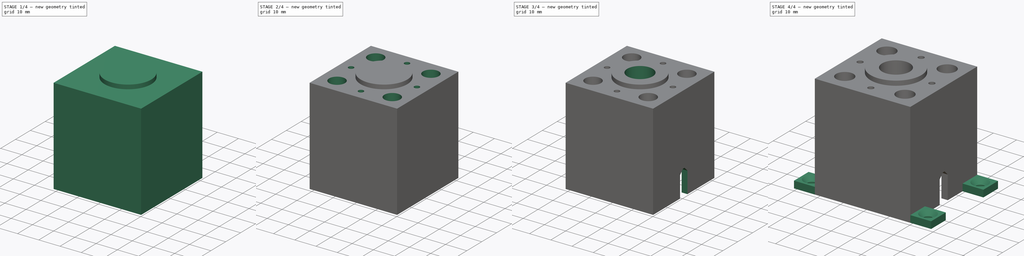
[diagram: build sequence overview — one tinted view per stage of 4, left to right]
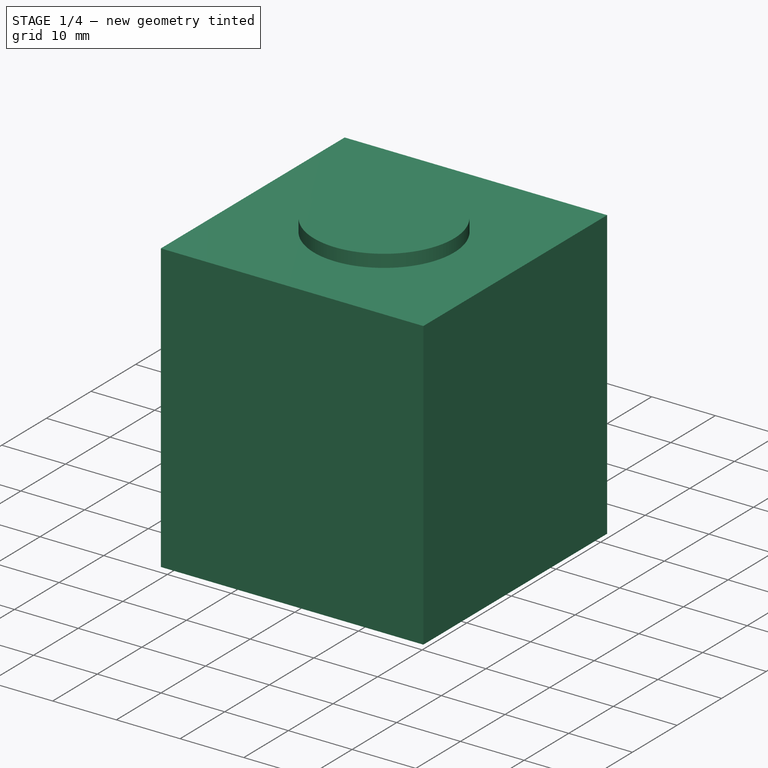
[diagram: stage 1 of 4 — iso view after this stage's code; geometry added in this stage tinted green]
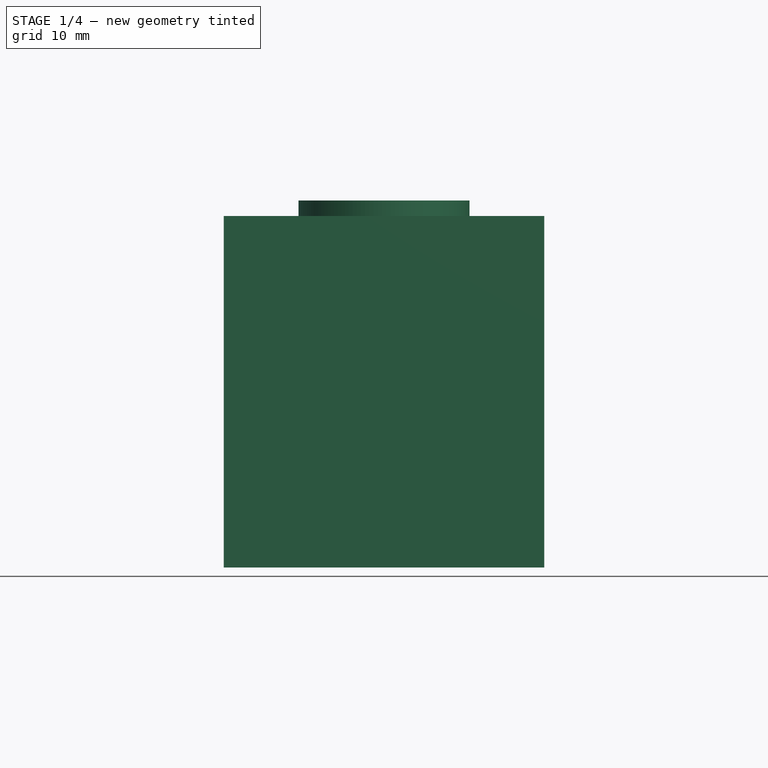
[diagram: stage 1 of 4 — front view after this stage's code; geometry added in this stage tinted green]
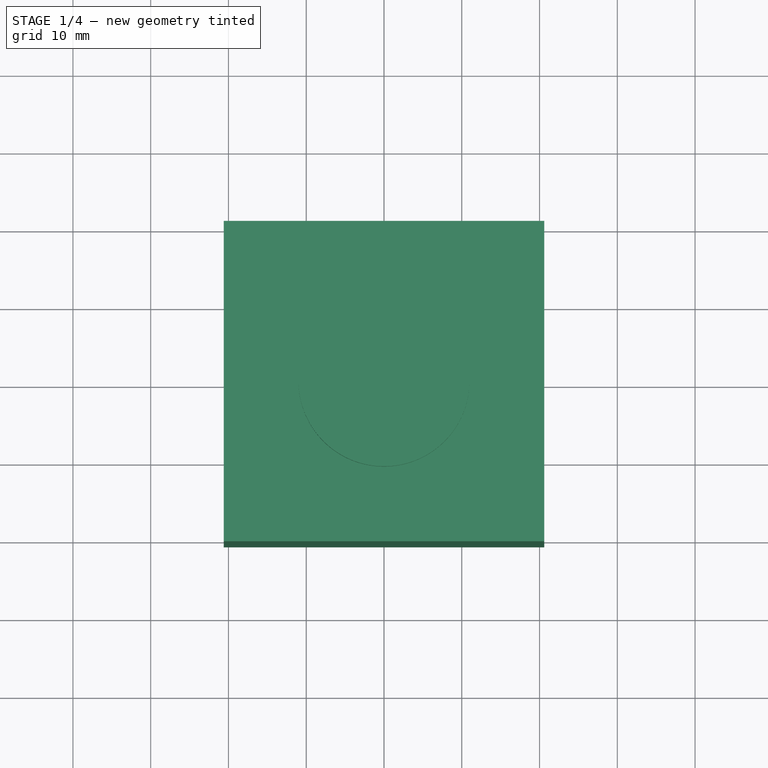
[diagram: stage 1 of 4 — top view after this stage's code; geometry added in this stage tinted green]
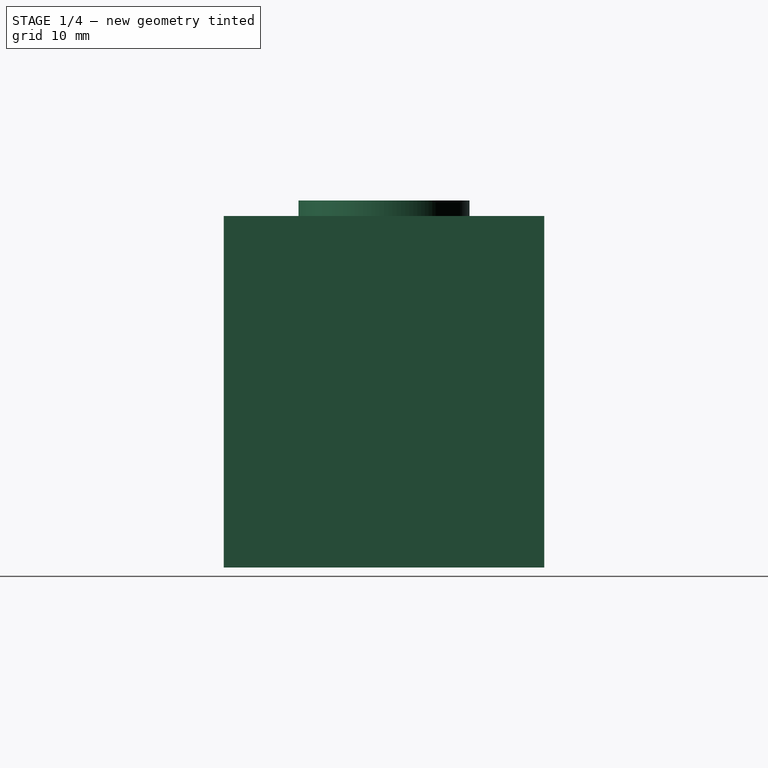
[diagram: stage 1 of 4 — right view after this stage's code; geometry added in this stage tinted green]
FCSTD DOCUMENT  (FreeCAD 0.18R16093 +53 (Git))
Label: ExtruderMount
License: All rights reserved
LicenseURL: http://en.wikipedia.org/wiki/All_rights_reserved
objects: Sketcher::SketchObject×10, PartDesign::Pocket×7, PartDesign::Pad×3, App::MeasureDistance×3, PartDesign::Chamfer×2, Spreadsheet::Sheet×1, PartDesign::Plane×1, PartDesign::Body×1
note: 34 computed .brp shape members not serialized (recipe doc carries the construction recipe); baked Part::Feature solids carry a one-line shape summary decoded from their .brp

FEATURE [Spreadsheet::Sheet] Spreadsheet
  cells = A1=MtrHolePitch; B1(MtrHolePitch)=26; A2=MtrHoleDiam; B2(MtrHoleDiam)=3; A3=MtrBodyLen; B3(MtrBodyLen)=36.2; A4=MtrBodyWid; B4(MtrBodyWid)=35.2; A5=MtrBossDiam; B5(MtrBodyDiam)=22; A6=MtrBossThk; B6(MtrBossThk)=2; A7=MtrShaftDiam; B7(MtrShaftDiam)=5; A9=StdThk; B9(StdThk)=3; A11=ExtrHolePitch; B11(ExtrHolePitch)=31; A12=ExtrHoleDiam; B12(ExtrHoleDiam)=2.5; A13=ExtrBossDiam; B13(ExtrBossDiam)=22; A14=ExtrBossThk; B14(ExtrBossThk)=2; A15=ExtrGearOff; B15(ExtrGearOff)=9; A16=GearDiam; B16(GearDiam)=12
FEATURE [Sketcher::SketchObject] Sketch
  MapMode = 5
  Support = -> [XY_Plane]
  expr: Constraints[6] = Spreadsheet.MtrBodyWid + Spreadsheet.StdThk * 2
  sketch-geometry (4):
    g0: LineSegment StartX=-20.6 StartY=20.6 StartZ=0 EndX=20.6 EndY=20.6 EndZ=0
    g1: LineSegment StartX=20.6 StartY=20.6 StartZ=0 EndX=20.6 EndY=-20.6 EndZ=0
    g2: LineSegment StartX=20.6 StartY=-20.6 StartZ=0 EndX=-20.6 EndY=-20.6 EndZ=0
    g3: LineSegment StartX=-20.6 StartY=-20.6 StartZ=0 EndX=-20.6 EndY=20.6 EndZ=0
  constraints (10):
    c: Coincident(g0,g1)
    c: Coincident(g1,g2)
    c: Coincident(g2,g3)
    c: Coincident(g3,g0)
    c: Horizontal(g0)
    c: Vertical(g1)
    c: DistanceX(g2,g1) = 41.2
    c: Symmetric(g2,g1,g-2)
    c: Symmetric(g0,g2,g-1)
    c: Equal(g2,g3)
FEATURE [PartDesign::Pad] Pad
  Length = 45.2
  Length2 = 100
  Profile = -> Sketch
  Type = 0
  expr: Length = Spreadsheet.MtrBodyLen + Spreadsheet.ExtrGearOff
FEATURE [Sketcher::SketchObject] Sketch001
  MapMode = 5
  Support = -> [XY_Plane]
  expr: Constraints[1] = Spreadsheet.ExtrBossDiam
  sketch-geometry (1):
    g0: Circle CenterX=0 CenterY=0 CenterZ=0 NormalX=0 NormalY=0 NormalZ=1 AngleXU=0 Radius=11
  constraints (2):
    c: Coincident(g0,g-1)
    c: Diameter(g0) = 22
FEATURE [PartDesign::Pad] Pad001
  BaseFeature = -> Pad
  Length = 47.2
  Length2 = 100
  Profile = -> Sketch001
  Type = 0
  expr: Length = Spreadsheet.MtrBodyLen + Spreadsheet.ExtrGearOff + Spreadsheet.ExtrBossThk
FEATURE [Sketcher::SketchObject] Sketch002
  MapMode = 5
  Support = -> [XY_Plane]
  expr: Constraints[0] = Spreadsheet.ExtrBossDiam + 0.2
  sketch-geometry (1):
    g0: Circle CenterX=0 CenterY=0 CenterZ=0 NormalX=0 NormalY=0 NormalZ=1 AngleXU=0 Radius=11.1
  constraints (2):
    c: Diameter(g0) = 22.2
    c: Coincident(g0,g-1)
FEATURE [PartDesign::Pocket] Pocket
  BaseFeature = -> Pad001
  Length = 38.7
  Length2 = 100
  Profile = -> Sketch002
  Reversed = true
  Type = 0
  expr: Length = Spreadsheet.MtrBodyLen + Spreadsheet.MtrBossThk + 0.5
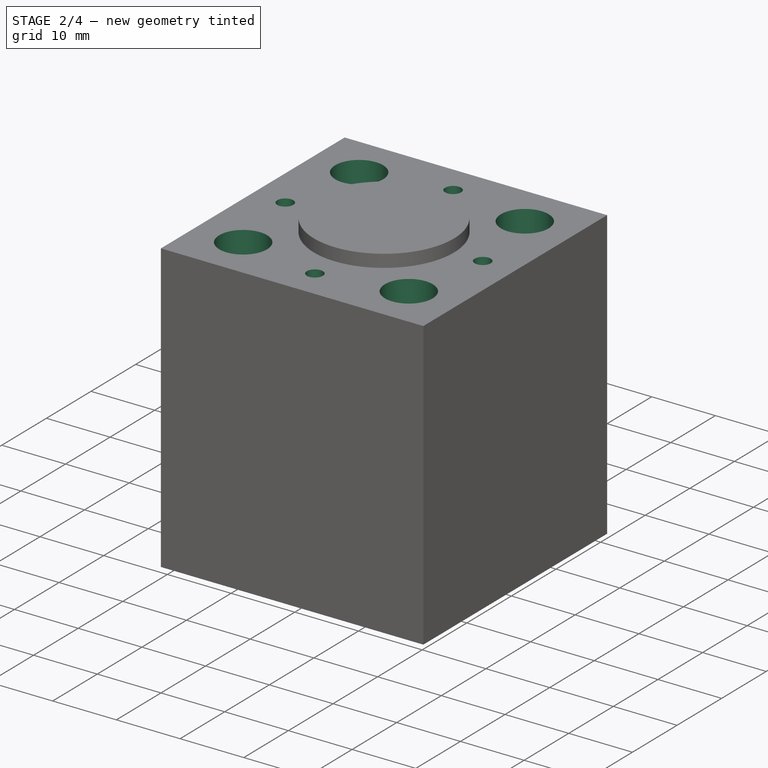
[diagram: stage 2 of 4 — iso view after this stage's code; geometry added in this stage tinted green]
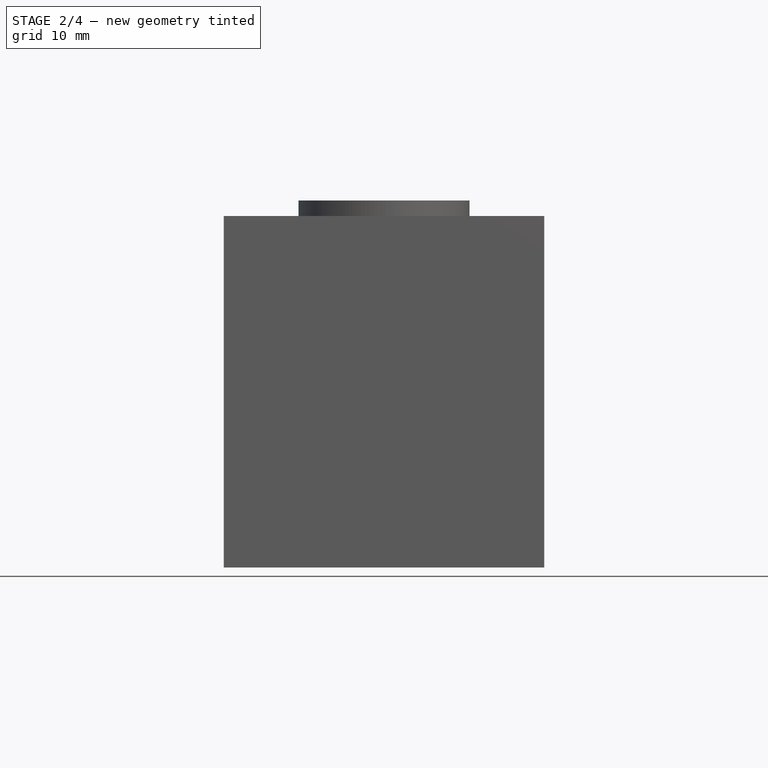
[diagram: stage 2 of 4 — front view after this stage's code; geometry added in this stage tinted green]
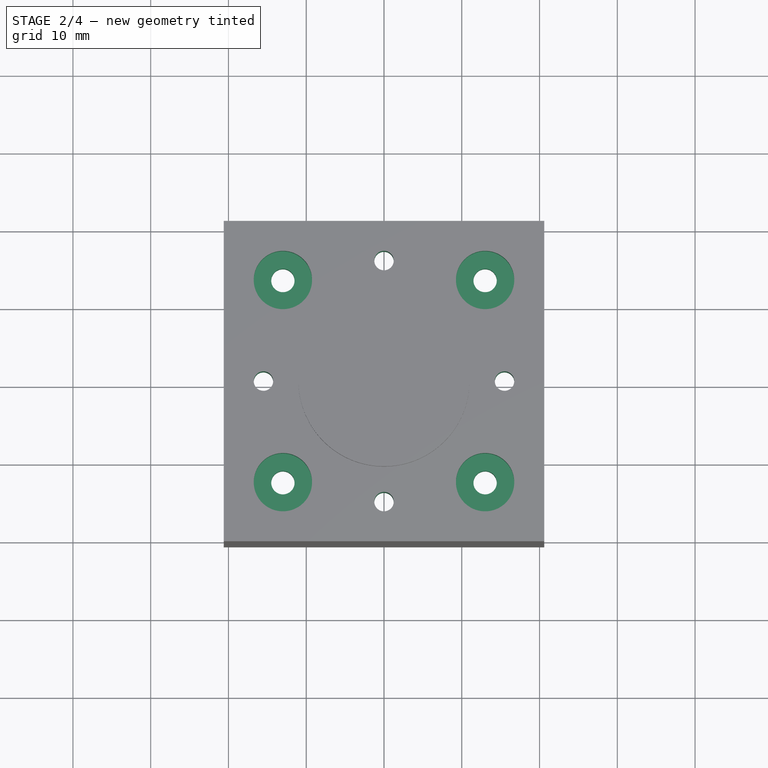
[diagram: stage 2 of 4 — top view after this stage's code; geometry added in this stage tinted green]
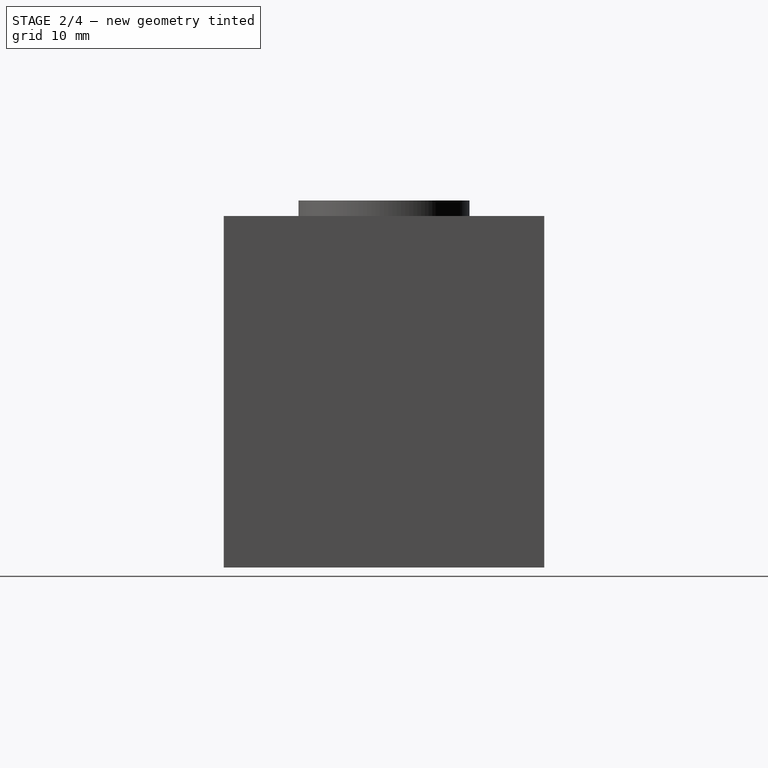
[diagram: stage 2 of 4 — right view after this stage's code; geometry added in this stage tinted green]
FEATURE [Sketcher::SketchObject] Sketch003
  MapMode = 5
  Support = -> [XY_Plane]
  expr: Constraints[6] = Spreadsheet.MtrBodyWid + 0.5
  sketch-geometry (4):
    g0: LineSegment StartX=-17.85 StartY=17.85 StartZ=0 EndX=17.85 EndY=17.85 EndZ=0
    g1: LineSegment StartX=17.85 StartY=17.85 StartZ=0 EndX=17.85 EndY=-17.85 EndZ=0
    g2: LineSegment StartX=17.85 StartY=-17.85 StartZ=0 EndX=-17.85 EndY=-17.85 EndZ=0
    g3: LineSegment StartX=-17.85 StartY=-17.85 StartZ=0 EndX=-17.85 EndY=17.85 EndZ=0
  constraints (10):
    c: Coincident(g0,g1)
    c: Coincident(g1,g2)
    c: Coincident(g2,g3)
    c: Coincident(g3,g0)
    c: Horizontal(g2)
    c: Vertical(g3)
    c: DistanceX(g0,g0) = 35.7
    c: Symmetric(g0,g0,g-2)
    c: Symmetric(g0,g1,g-1)
    c: Equal(g0,g1)
FEATURE [PartDesign::Pocket] Pocket001
  BaseFeature = -> Pocket
  Length = 36.7
  Length2 = 100
  Profile = -> Sketch003
  Reversed = true
  Type = 0
  expr: Length = Spreadsheet.MtrBodyLen + 0.5
FEATURE [PartDesign::Plane] DatumPlane
  Length = 69.0773
  MapMode = 5
  Placement = pos=(0,0,45.2) rot=(0,0,1;0rad)
  ResizeMode = 0
  Support = -> [Pocket001]
  Width = 51.0773
FEATURE [Sketcher::SketchObject] Sketch004
  MapMode = 5
  Placement = pos=(0,0,45.2) rot=(0,0,1;0rad)
  Support = -> [DatumPlane]
  expr: Constraints[17] = Spreadsheet.ExtrHolePitch
  expr: Constraints[5] = Spreadsheet.MtrHolePitch
  expr: Constraints[4] = Spreadsheet.MtrHoleDiam
  expr: Constraints[16] = Spreadsheet.ExtrHolePitch
  expr: Constraints[3] = Spreadsheet.MtrHolePitch
  sketch-geometry (8):
    g0: Circle CenterX=13 CenterY=13 CenterZ=0 NormalX=0 NormalY=0 NormalZ=1 AngleXU=0 Radius=1.5
    g1: Circle CenterX=15.5 CenterY=0 CenterZ=0 NormalX=0 NormalY=0 NormalZ=1 AngleXU=0 Radius=1.25
    g2: Circle CenterX=-13 CenterY=13 CenterZ=0 NormalX=0 NormalY=0 NormalZ=1 AngleXU=0 Radius=1.5
    g3: Circle CenterX=0 CenterY=15.5 CenterZ=0 NormalX=0 NormalY=0 NormalZ=1 AngleXU=0 Radius=1.25
    g4: Circle CenterX=-15.5 CenterY=0 CenterZ=0 NormalX=0 NormalY=0 NormalZ=1 AngleXU=0 Radius=1.25
    g5: Circle CenterX=0 CenterY=-15.5 CenterZ=0 NormalX=0 NormalY=0 NormalZ=1 AngleXU=0 Radius=1.25
    g6: Circle CenterX=13 CenterY=-13 CenterZ=0 NormalX=0 NormalY=0 NormalZ=1 AngleXU=0 Radius=1.5
    g7: Circle CenterX=-13 CenterY=-13 CenterZ=0 NormalX=0 NormalY=0 NormalZ=1 AngleXU=0 Radius=1.5
  constraints (18):
    c: Symmetric(g2,g7,g-1)
    c: Symmetric(g2,g0,g-2)
    c: Symmetric(g6,g0,g-1)
    c: DistanceX(g2,g0) = 26
    c: Diameter(g2) = 3
    c: DistanceY(g6,g0) = 26
    c: Equal(g3,g1)
    c: Equal(g1,g5)
    c: Equal(g3,g4)
    c: Equal(g7,g2)
    c: Equal(g0,g6)
    c: Equal(g0,g2)
    c: PointOnObject(g3,g-2)
    c: PointOnObject(g1,g-1)
    c: Symmetric(g3,g5,g-1)
    c: Symmetric(g1,g4,g-2)
    c: DistanceX(g4,g1) = 31
    c: DistanceY(g5,g3) = 31
FEATURE [PartDesign::Pocket] Pocket002
  BaseFeature = -> Pocket001
  Length = 5
  Length2 = 100
  Profile = -> Sketch004
  Type = 1
FEATURE [Sketcher::SketchObject] Sketch005
  MapMode = 5
  Placement = pos=(0,0,45.2) rot=(0,0,1;0rad)
  Support = -> [DatumPlane]
  expr: Constraints[2] = Spreadsheet.MtrHolePitch
  expr: Constraints[1] = Spreadsheet.MtrHolePitch
  sketch-geometry (4):
    g0: Circle CenterX=-13 CenterY=13 CenterZ=0 NormalX=0 NormalY=0 NormalZ=1 AngleXU=0 Radius=3.75
    g1: Circle CenterX=13 CenterY=13 CenterZ=0 NormalX=0 NormalY=0 NormalZ=1 AngleXU=0 Radius=3.75
    g2: Circle CenterX=13 CenterY=-13 CenterZ=0 NormalX=0 NormalY=0 NormalZ=1 AngleXU=0 Radius=3.75
    g3: Circle CenterX=-13 CenterY=-13 CenterZ=0 NormalX=0 NormalY=0 NormalZ=1 AngleXU=0 Radius=3.75
  constraints (9):
    c: Diameter(g1) = 7.5
    c: DistanceY(g2,g1) = 26
    c: DistanceX(g0,g1) = 26
    c: Equal(g1,g0)
    c: Equal(g1,g2)
    c: Equal(g1,g3)
    c: Symmetric(g0,g3,g-1)
    c: Symmetric(g0,g1,g-2)
    c: Symmetric(g1,g2,g-1)
FEATURE [PartDesign::Pocket] Pocket003
  BaseFeature = -> Pocket002
  Length = 4
  Length2 = 100
  Profile = -> Sketch005
  Type = 0
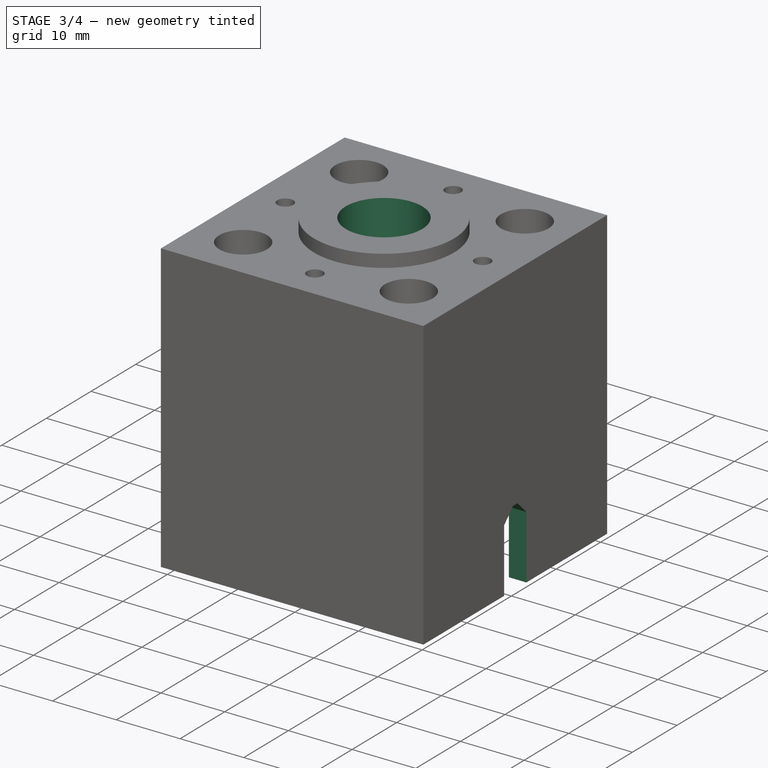
[diagram: stage 3 of 4 — iso view after this stage's code; geometry added in this stage tinted green]
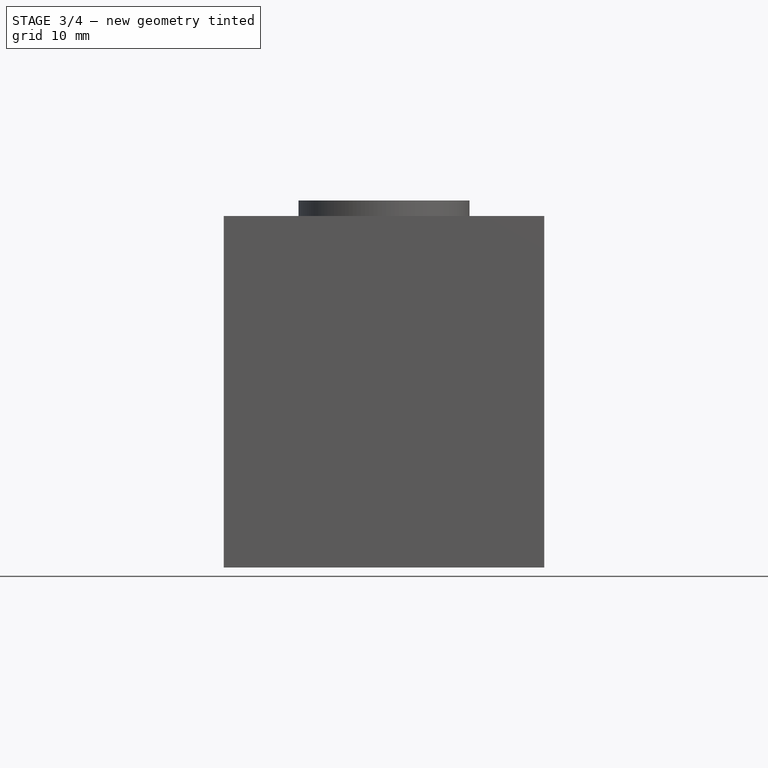
[diagram: stage 3 of 4 — front view after this stage's code; geometry added in this stage tinted green]
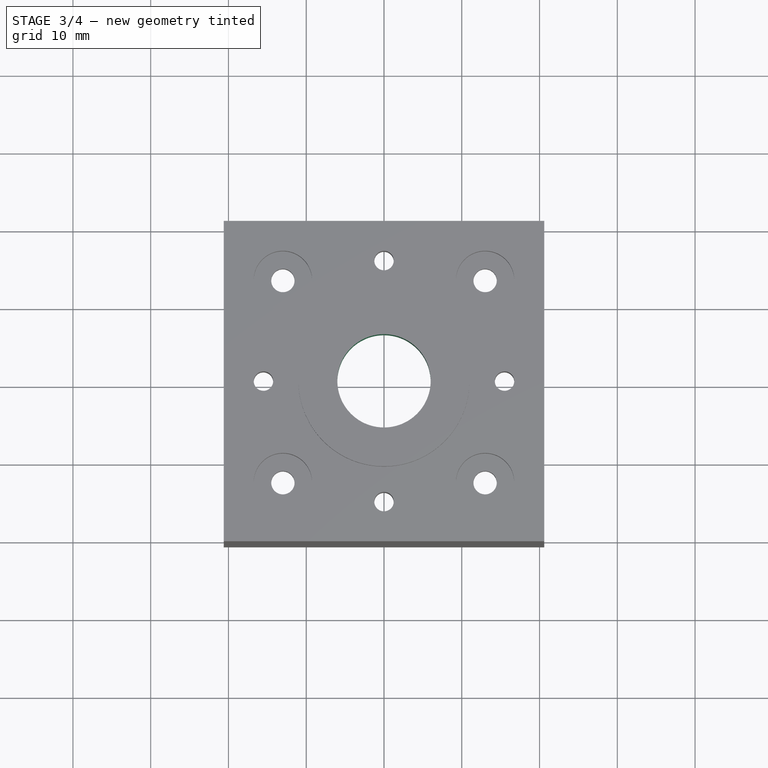
[diagram: stage 3 of 4 — top view after this stage's code; geometry added in this stage tinted green]
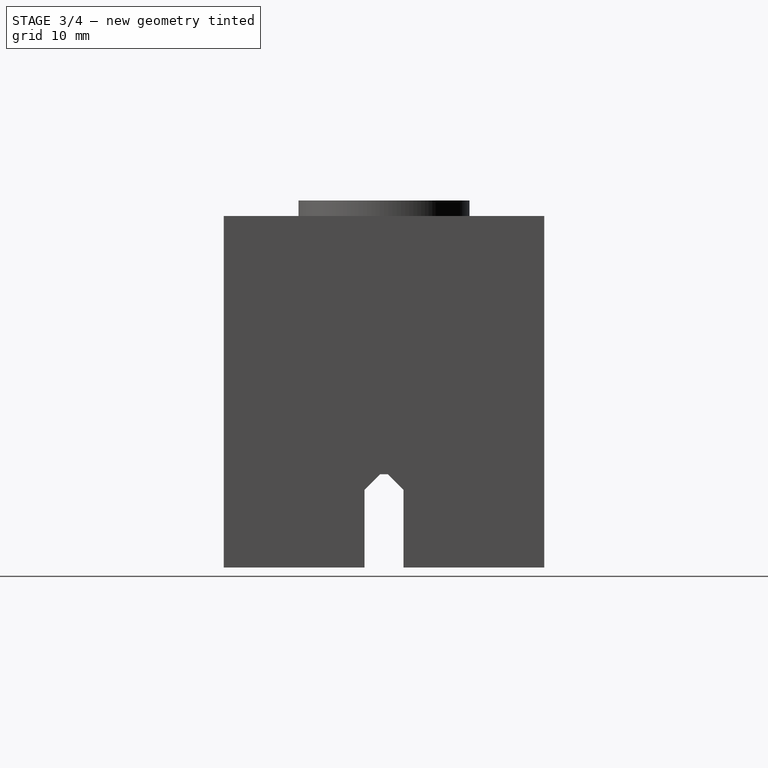
[diagram: stage 3 of 4 — right view after this stage's code; geometry added in this stage tinted green]
FEATURE [Sketcher::SketchObject] Sketch006
  MapMode = 5
  Support = -> [XY_Plane]
  expr: Constraints[0] = Spreadsheet.GearDiam
  sketch-geometry (1):
    g0: Circle CenterX=0 CenterY=0 CenterZ=0 NormalX=0 NormalY=0 NormalZ=1 AngleXU=0 Radius=6
  constraints (2):
    c: Diameter(g0) = 12
    c: Coincident(g0,g-1)
FEATURE [PartDesign::Pocket] Pocket004
  BaseFeature = -> Pocket003
  Length = 5
  Length2 = 100
  Profile = -> Sketch006
  Reversed = true
  Type = 1
FEATURE [Sketcher::SketchObject] Sketch007
  MapMode = 5
  Support = -> [XY_Plane]
  sketch-geometry (4):
    g0: LineSegment StartX=-27.5 StartY=2.5 StartZ=0 EndX=27.5 EndY=2.5 EndZ=0
    g1: LineSegment StartX=27.5 StartY=2.5 StartZ=0 EndX=27.5 EndY=-2.5 EndZ=0
    g2: LineSegment StartX=27.5 StartY=-2.5 StartZ=0 EndX=-27.5 EndY=-2.5 EndZ=0
    g3: LineSegment StartX=-27.5 StartY=-2.5 StartZ=0 EndX=-27.5 EndY=2.5 EndZ=0
  constraints (10):
    c: Coincident(g0,g1)
    c: Coincident(g1,g2)
    c: Coincident(g2,g3)
    c: Coincident(g3,g0)
    c: Horizontal(g2)
    c: Vertical(g1)
    c: DistanceX(g0,g0) = 55
    c: DistanceY(g2,g0) = 5
    c: Symmetric(g0,g2,g-1)
    c: Symmetric(g0,g0,g-2)
FEATURE [PartDesign::Pocket] Pocket005
  BaseFeature = -> Pocket004
  Length = 12
  Length2 = 100
  Profile = -> Sketch007
  Reversed = true
  Type = 0
FEATURE [PartDesign::Chamfer] Chamfer
  Base = -> Pocket005 [Edge45,Edge48,Edge40,Edge43]
  BaseFeature = -> Pocket005
  Size = 2
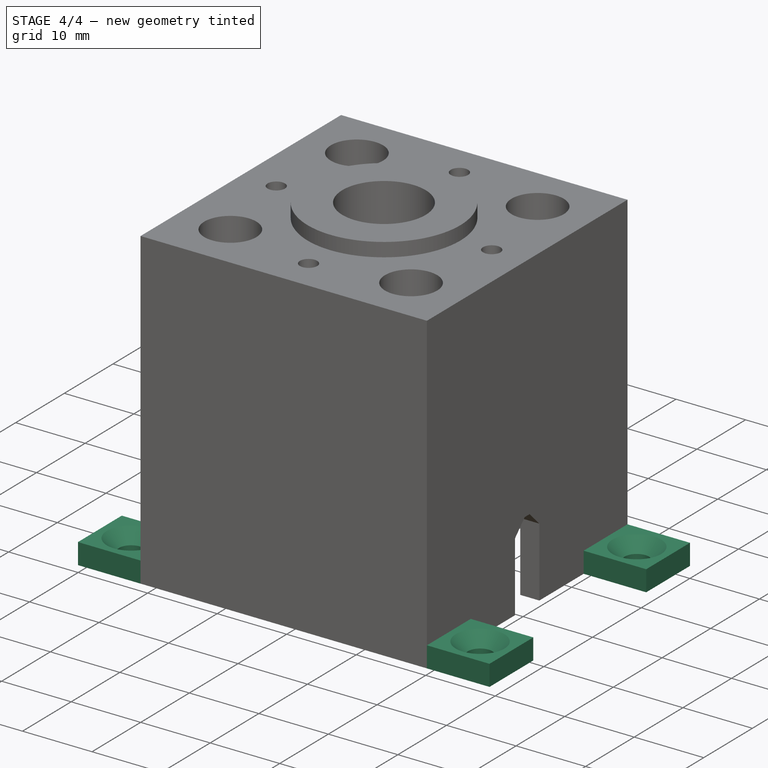
[diagram: stage 4 of 4 — iso view after this stage's code; geometry added in this stage tinted green]
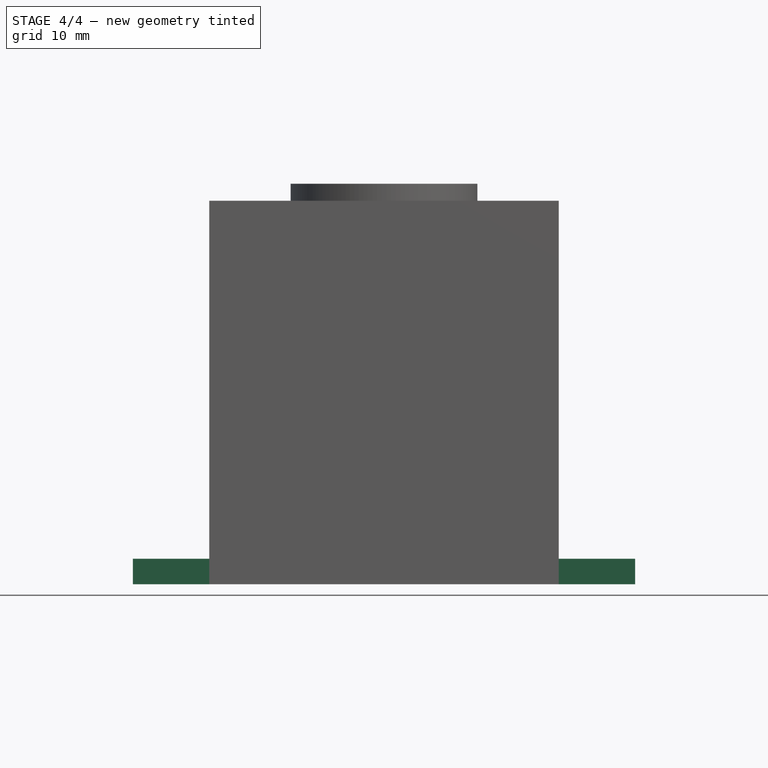
[diagram: stage 4 of 4 — front view after this stage's code; geometry added in this stage tinted green]
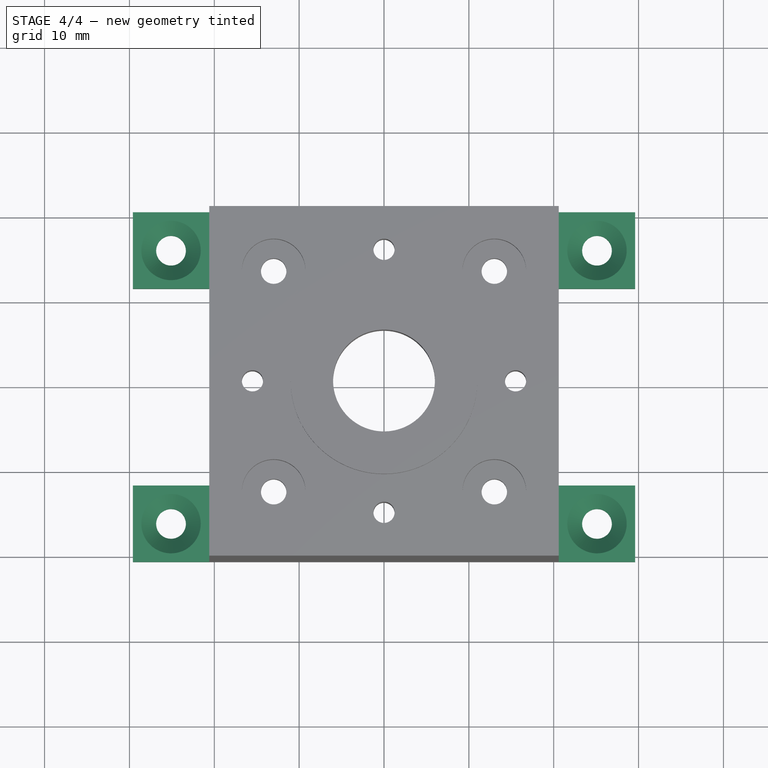
[diagram: stage 4 of 4 — top view after this stage's code; geometry added in this stage tinted green]
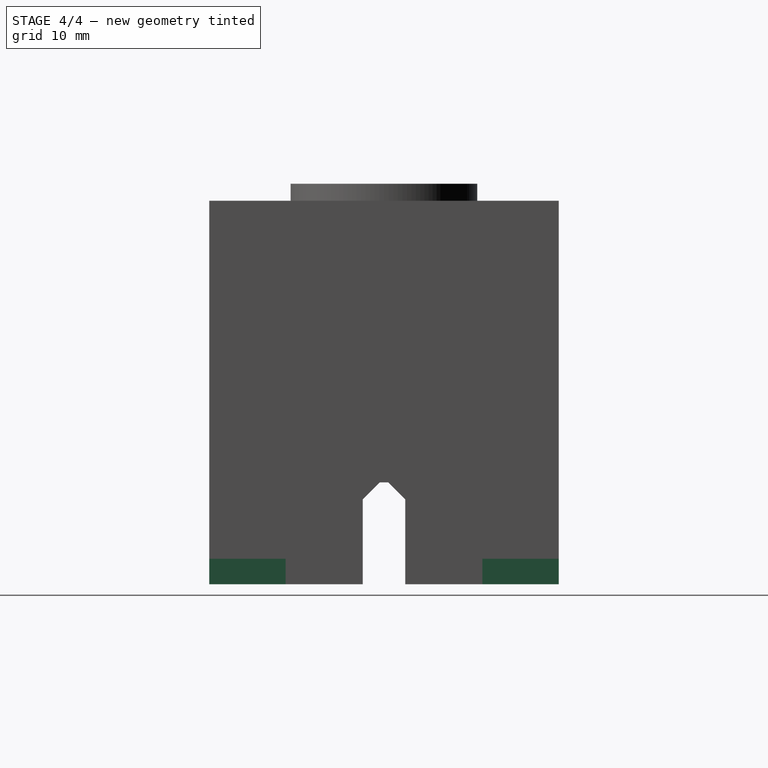
[diagram: stage 4 of 4 — right view after this stage's code; geometry added in this stage tinted green]
FEATURE [Sketcher::SketchObject] Sketch008
  ExternalGeometry = -> [Chamfer]
  MapMode = 5
  Support = -> [XY_Plane]
  sketch-geometry (16):
    g0: LineSegment StartX=-29.6 StartY=20.6 StartZ=0 EndX=-20.6 EndY=20.6 EndZ=0
    g1: LineSegment StartX=-20.6 StartY=20.6 StartZ=0 EndX=-20.6 EndY=11.6 EndZ=0
    g2: LineSegment StartX=-20.6 StartY=11.6 StartZ=0 EndX=-29.6 EndY=11.6 EndZ=0
    g3: LineSegment StartX=-29.6 StartY=11.6 StartZ=0 EndX=-29.6 EndY=20.6 EndZ=0
    g4: LineSegment StartX=20.6 StartY=20.6 StartZ=0 EndX=29.6 EndY=20.6 EndZ=0
    g5: LineSegment StartX=29.6 StartY=20.6 StartZ=0 EndX=29.6 EndY=11.6 EndZ=0
    g6: LineSegment StartX=29.6 StartY=11.6 StartZ=0 EndX=20.6 EndY=11.6 EndZ=0
    g7: LineSegment StartX=20.6 StartY=11.6 StartZ=0 EndX=20.6 EndY=20.6 EndZ=0
    g8: LineSegment StartX=20.6 StartY=-20.6 StartZ=0 EndX=29.6 EndY=-20.6 EndZ=0
    g9: LineSegment StartX=29.6 StartY=-20.6 StartZ=0 EndX=29.6 EndY=-11.6 EndZ=0
    g10: LineSegment StartX=29.6 StartY=-11.6 StartZ=0 EndX=20.6 EndY=-11.6 EndZ=0
    g11: LineSegment StartX=20.6 StartY=-11.6 StartZ=0 EndX=20.6 EndY=-20.6 EndZ=0
    g12: LineSegment StartX=-20.6 StartY=-20.6 StartZ=0 EndX=-29.6 EndY=-20.6 EndZ=0
    g13: LineSegment StartX=-29.6 StartY=-20.6 StartZ=0 EndX=-29.6 EndY=-11.6 EndZ=0
    g14: LineSegment StartX=-29.6 StartY=-11.6 StartZ=0 EndX=-20.6 EndY=-11.6 EndZ=0
    g15: LineSegment StartX=-20.6 StartY=-11.6 StartZ=0 EndX=-20.6 EndY=-20.6 EndZ=0
  constraints (44):
    c: Coincident(g0,g1)
    c: Coincident(g1,g2)
    c: Coincident(g2,g3)
    c: Coincident(g3,g0)
    c: Horizontal(g0)
    c: Horizontal(g2)
    c: Vertical(g1)
    c: Vertical(g3)
    c: Coincident(g4,g5)
    c: Coincident(g5,g6)
    c: Coincident(g6,g7)
    c: Coincident(g7,g4)
    c: Horizontal(g4)
    c: Horizontal(g6)
    c: Vertical(g5)
    c: Vertical(g7)
    c: Coincident(g8,g9)
    c: Coincident(g9,g10)
    c: Coincident(g10,g11)
    c: Coincident(g11,g8)
    c: Horizontal(g8)
    c: Horizontal(g10)
    c: Vertical(g9)
    c: Vertical(g11)
    c: Coincident(g12,g13)
    c: Coincident(g13,g14)
    c: Coincident(g14,g15)
    c: Coincident(g15,g12)
    c: Horizontal(g12)
    c: Horizontal(g14)
    c: Vertical(g13)
    c: Vertical(g15)
    c: Coincident(g12,g-3)
    c: Coincident(g8,g-3)
    c: Coincident(g4,g-4)
    c: Coincident(g0,g-4)
    c: DistanceY(g5,g4) = 9
    c: Equal(g5,g9)
    c: Equal(g9,g13)
    c: Equal(g3,g5)
    c: DistanceX(g4,g4) = 9
    c: Equal(g6,g10)
    c: Equal(g6,g12)
    c: Equal(g6,g2)
FEATURE [PartDesign::Pad] Pad002
  BaseFeature = -> Chamfer
  Length = 3
  Length2 = 100
  Profile = -> Sketch008
  Type = 0
FEATURE [Sketcher::SketchObject] Sketch009
  ExternalGeometry = -> [Pad002]
  MapMode = 5
  Support = -> [XY_Plane]
  sketch-geometry (4):
    g0: Circle CenterX=-25.1 CenterY=16.1 CenterZ=0 NormalX=0 NormalY=0 NormalZ=1 AngleXU=0 Radius=1.75
    g1: Circle CenterX=-25.1 CenterY=-16.1 CenterZ=0 NormalX=0 NormalY=0 NormalZ=1 AngleXU=0 Radius=1.75
    g2: Circle CenterX=25.1 CenterY=-16.1 CenterZ=0 NormalX=0 NormalY=0 NormalZ=1 AngleXU=0 Radius=1.75
    g3: Circle CenterX=25.1 CenterY=16.1 CenterZ=0 NormalX=0 NormalY=0 NormalZ=1 AngleXU=0 Radius=1.75
  constraints (8):
    c: Diameter(g0) = 3.5
    c: Symmetric(g-9,g-10,g0)
    c: Symmetric(g-7,g-8,g3)
    c: Symmetric(g-6,g-5,g2)
    c: Symmetric(g-3,g-4,g1)
    c: Equal(g1,g0)
    c: Equal(g0,g3)
    c: Equal(g0,g2)
FEATURE [PartDesign::Pocket] Pocket006
  BaseFeature = -> Pad002
  Length = 5
  Length2 = 100
  Profile = -> Sketch009
  Reversed = true
  Type = 1
FEATURE [PartDesign::Chamfer] Chamfer001
  Base = -> Pocket006 [Edge37,Edge60,Edge147,Edge151]
  BaseFeature = -> Pocket006
  Size = 1.75
FEATURE [PartDesign::Body] Body
  Group = -> [Sketch,Pad,Sketch001,Pad001,Sketch002,Pocket,Sketch003,Pocket001,DatumPlane,Sketch004,Pocket002,Sketch005,Pocket003,Sketch006,Pocket004,Sketch007,Pocket005,Chamfer,Sketch008,Pad002,Sketch009,Pocket006,Chamfer001]
  Origin = -> Origin
  Tip = -> Chamfer001
FEATURE [App::MeasureDistance] Distance  label="Distance: 2.47 mm"
  Distance = 2.46858
  P1 = (26.799,19.1322,3)
  P2 = (26.0941,17.5402,1.25)
FEATURE [App::MeasureDistance] Distance001  label="Distance: 3.70 mm"
  Distance = 3.69826
  P1 = (21.6111,16.0088,3)
  P2 = (24.4794,14.4637,1.25)
FEATURE [App::MeasureDistance] Distance002  label="Distance: 3.50 mm"
  Distance = 3.5006
  P1 = (22.1203,18.9339,3)
  P2 = (24.0197,17.4639,0.453354)
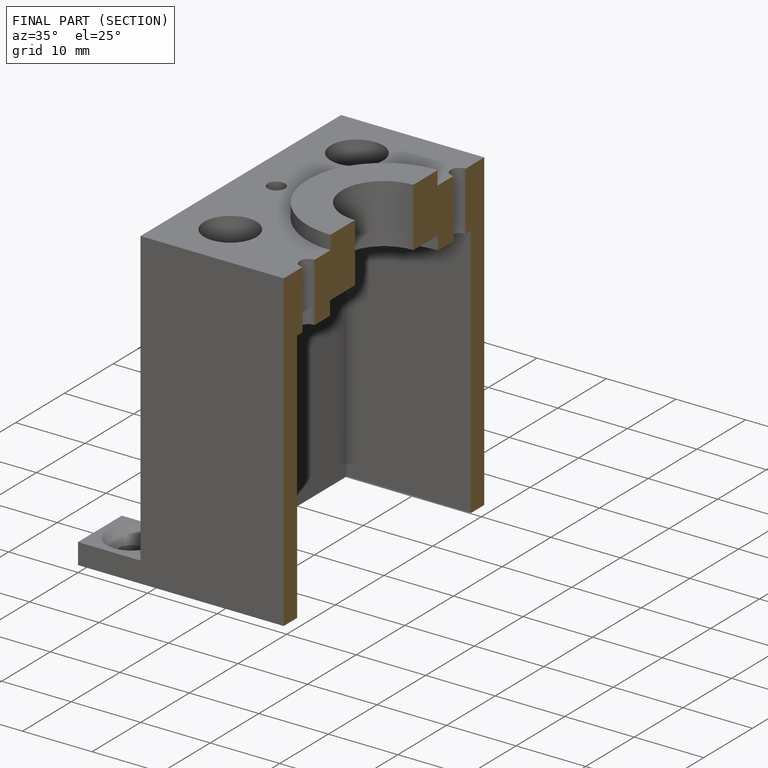
[diagram: finished part — half-section view (interior)]
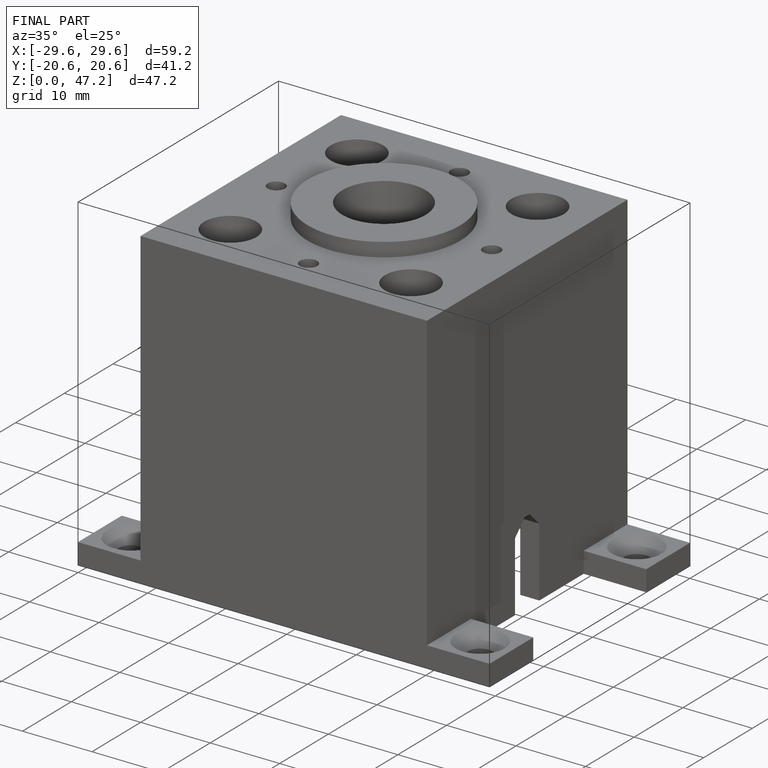
[diagram: finished part — iso view with bounding-box wireframe]
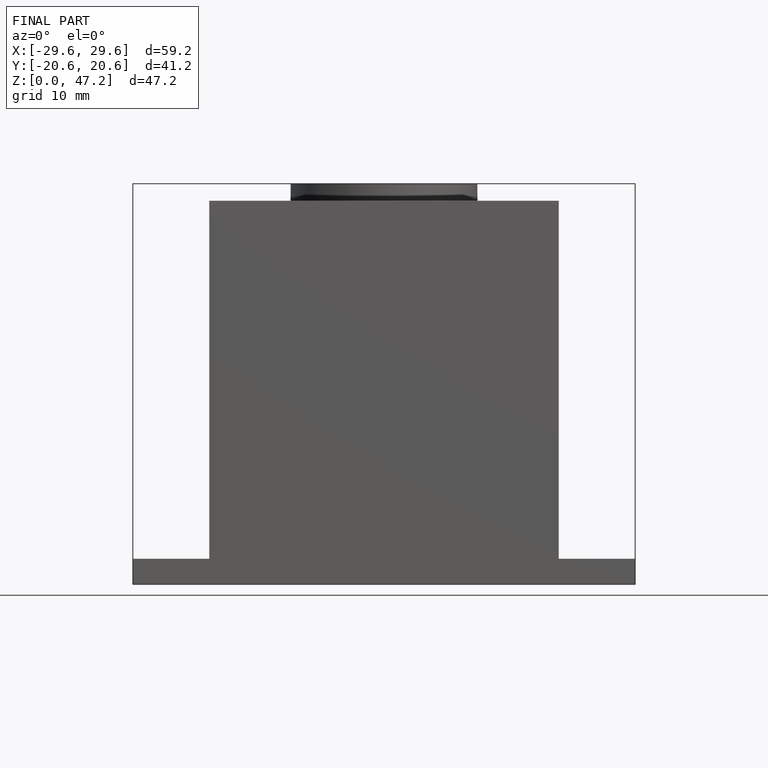
[diagram: finished part — front view with bounding-box wireframe]
